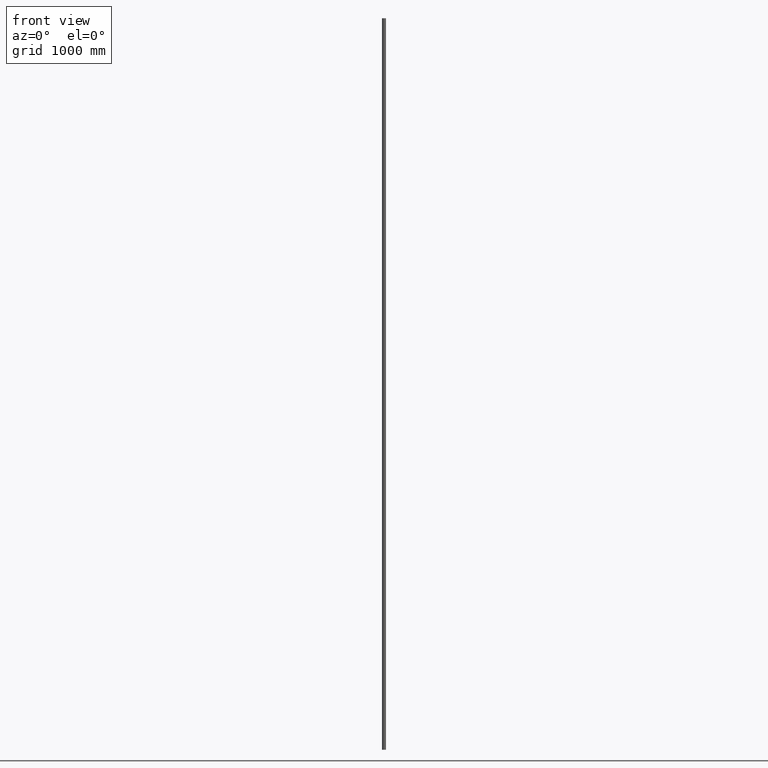
[diagram: clean part render]
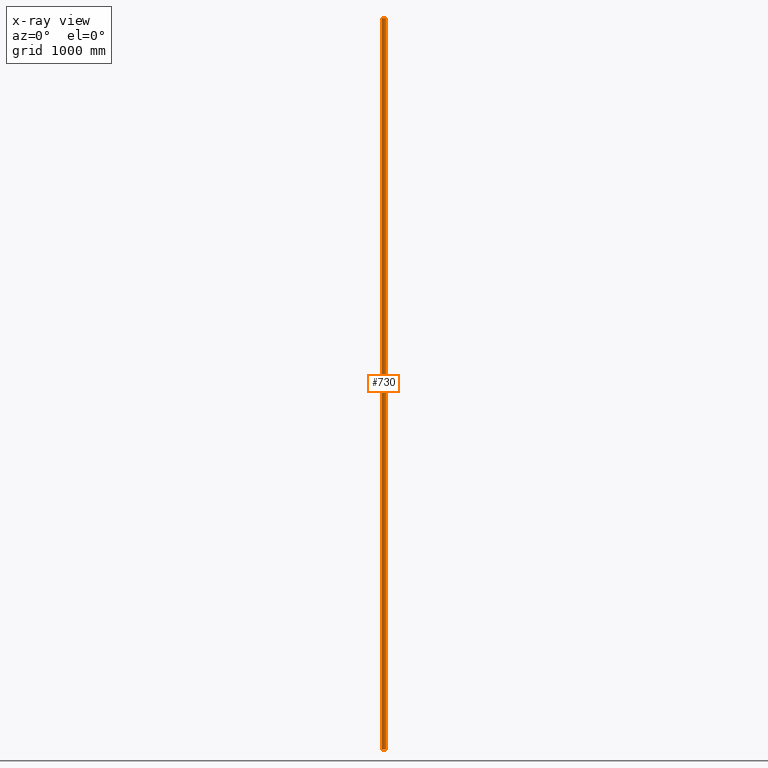
[diagram: x-ray — body ghosted, one internal face saturated and labeled with its STEP entity id]
A machine part, front view, then the same camera in x-ray: the body is ghosted and one INTERNAL B-rep face — a face not visible from any outside direction — is saturated and labeled: STEP entity #730.
In plain terms, the highlighted cylindrical surface (bore or boss wall) has radius 16.85 mm, axis along (-0, -0, -1).
Its self-contained STEP definition (entity closure, byte-faithful):
#444 = AXIS2_PLACEMENT_3D ( 'NONE', #1198, #5365, #6415 ) ;
#730 = ADVANCED_FACE ( 'NONE', ( #4845, #12328 ), #7604, .T. ) ;
#1198 = CARTESIAN_POINT ( 'NONE',  ( 0.000000000000000000, 0.000000000000000000, 3000.000000000000000 ) ) ;
#2444 = VERTEX_POINT ( 'NONE', #7195 ) ;
#2447 = EDGE_LOOP ( 'NONE', ( #5269 ) ) ;
#3135 = EDGE_LOOP ( 'NONE', ( #9145 ) ) ;
#3712 = CARTESIAN_POINT ( 'NONE',  ( 0.000000000000000000, 0.000000000000000000, -3000.000000000000000 ) ) ;
#4078 = CIRCLE ( 'NONE', #4802, 16.85000000000000142 ) ;
#4802 = AXIS2_PLACEMENT_3D ( 'NONE', #3712, #4826, #5696 ) ;
#4826 = DIRECTION ( 'NONE',  ( 0.000000000000000000, 0.000000000000000000, 1.000000000000000000 ) ) ;
#4845 = FACE_OUTER_BOUND ( 'NONE', #2447, .T. ) ;
#4860 = CARTESIAN_POINT ( 'NONE',  ( 0.000000000000000000, 0.000000000000000000, 3000.000000000000000 ) ) ;
#5250 = CIRCLE ( 'NONE', #444, 16.85000000000000142 ) ;
#5269 = ORIENTED_EDGE ( 'NONE', *, *, #13262, .F. ) ;
#5365 = DIRECTION ( 'NONE',  ( 0.000000000000000000, 0.000000000000000000, 1.000000000000000000 ) ) ;
#5696 = DIRECTION ( 'NONE',  ( 1.000000000000000000, 0.000000000000000000, 0.000000000000000000 ) ) ;
#6415 = DIRECTION ( 'NONE',  ( 1.000000000000000000, 0.000000000000000000, 0.000000000000000000 ) ) ;
#7037 = VERTEX_POINT ( 'NONE', #13132 ) ;
#7195 = CARTESIAN_POINT ( 'NONE',  ( 16.85000000000000142, 0.000000000000000000, -3000.000000000000000 ) ) ;
#7604 = CYLINDRICAL_SURFACE ( 'NONE', #9588, 16.85000000000000142 ) ;
#7789 = EDGE_CURVE ( 'NONE', #2444, #2444, #4078, .T. ) ;
#9145 = ORIENTED_EDGE ( 'NONE', *, *, #7789, .T. ) ;
#9238 = DIRECTION ( 'NONE',  ( -0.000000000000000000, -0.000000000000000000, -1.000000000000000000 ) ) ;
#9588 = AXIS2_PLACEMENT_3D ( 'NONE', #4860, #9238, #10437 ) ;
#10437 = DIRECTION ( 'NONE',  ( -1.000000000000000000, 0.000000000000000000, 0.000000000000000000 ) ) ;
#12328 = FACE_OUTER_BOUND ( 'NONE', #3135, .T. ) ;
#13132 = CARTESIAN_POINT ( 'NONE',  ( 16.85000000000000142, 0.000000000000000000, 3000.000000000000000 ) ) ;
#13262 = EDGE_CURVE ( 'NONE', #7037, #7037, #5250, .T. ) ;